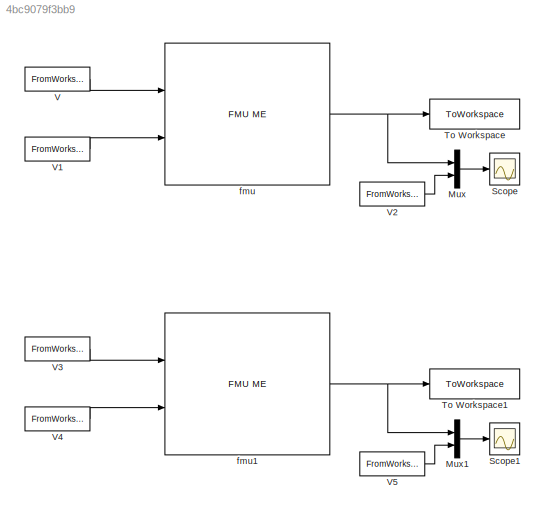
MODEL slx_4bc9079f3bb9
KIND model
CONFIG AbsTol = auto
CONFIG EnableMultiTasking = off
CONFIG FixedStep = 0.005
CONFIG MaxStep = auto
CONFIG MinStep = auto
CONFIG RelTol = 1e-2
CONFIG SampleTimeConstraint = Unconstrained
CONFIG Solver = VariableStepAuto
CONFIG SolverName = VariableStepAuto
CONFIG StartTime = 0.0
CONFIG StopTime = 16.5
BLOCK [Mux] Mux
  DisplayOption = bar
  Inputs = 2
  Ports = [2, 1]
BLOCK [Mux] Mux1
  DisplayOption = bar
  Inputs = 2
  Ports = [2, 1]
BLOCK [Scope] Scope
  Floating = off
  NumInputPorts = 1
  Ports = [1]
  ScopeSpecificationString = Simulink.scopes.TimeScopeBlockCfg('CurrentConfiguration', extmgr.ConfigurationSet(extmgr.Configuration('Core','General UI',true,'FigureColor',[1 1 1]),extmgr.Configuration('Core','Source UI',true),extmgr.Configuration('Sources','WiredSimulink',true),extmgr.Configuration('Visuals','Time Domain',true,'SerializedDisplays',{struct('MinYLimReal','-0.02723','MaxYLimReal','0.02113','YLabelReal','','MinYL...<+1394ch>
BLOCK [Scope] Scope1
  Floating = off
  NumInputPorts = 1
  Ports = [1]
  ScopeSpecificationString = Simulink.scopes.TimeScopeBlockCfg('CurrentConfiguration', extmgr.ConfigurationSet(extmgr.Configuration('Core','General UI',true,'FigureColor',[1 1 1]),extmgr.Configuration('Core','Source UI',true),extmgr.Configuration('Sources','WiredSimulink',true,'DataLoggingVariableName','ScopeData1'),extmgr.Configuration('Visuals','Time Domain',true,'SerializedDisplays',{struct('MinYLimReal','-0.125','MaxYLimR...<+1448ch>
BLOCK [ToWorkspace] To Workspace
  FixptAsFi = on
  MaxDataPoints = inf
  Ports = [1]
  SampleTime = -1
  SaveFormat = Timeseries
  VariableName = VPSS
BLOCK [ToWorkspace] To Workspace1
  FixptAsFi = on
  MaxDataPoints = inf
  Ports = [1]
  SampleTime = -1
  SaveFormat = Timeseries
  VariableName = VPSS1
BLOCK [FromWorkspace] V
  VariableName = [t,w2]
BLOCK [FromWorkspace] V1
  VariableName = [t,P]
BLOCK [FromWorkspace] V2
  VariableName = [t,V_PSS2]
BLOCK [FromWorkspace] V3
  VariableName = [t,w2]
BLOCK [FromWorkspace] V4
  VariableName = [t,P]
BLOCK [FromWorkspace] V5
  VariableName = [t,V_PSS2]
BLOCK [Reference] fmu  REF=fmu_me_lib/FMU ME
  Description = Simulates an FMU for Model Exchange 1.0 or Model Exchange 2.0.
  Ports = [2, 1]
  SourceBlock = fmu_me_lib/FMU ME
  UserDataPersistent = on
BLOCK [Reference] fmu1  REF=fmu_me_lib/FMU ME
  Description = Simulates an FMU for Model Exchange 1.0 or Model Exchange 2.0.
  Ports = [2, 1]
  SourceBlock = fmu_me_lib/FMU ME
  UserDataPersistent = on
LINE Mux1:1 -> Scope1:1
LINE Mux:1 -> Scope:1
LINE V1:1 -> fmu:2
LINE V2:1 -> Mux:2
LINE V3:1 -> fmu1:1
LINE V4:1 -> fmu1:2
LINE V5:1 -> Mux1:2
LINE V:1 -> fmu:1
NET fmu1:1 -> Mux1:1, To Workspace1:1
NET fmu:1 -> Mux:1, To Workspace:1
note: NET lines group one-source signal fan-out (src -> all destinations, sorted); 1:1 wires keep LINE
